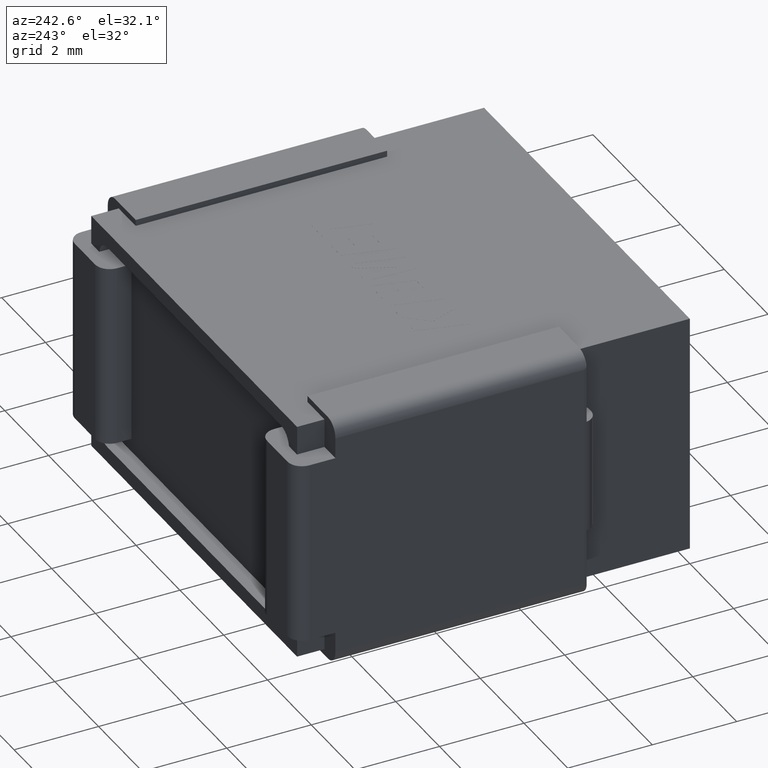
[diagram: clean part render]
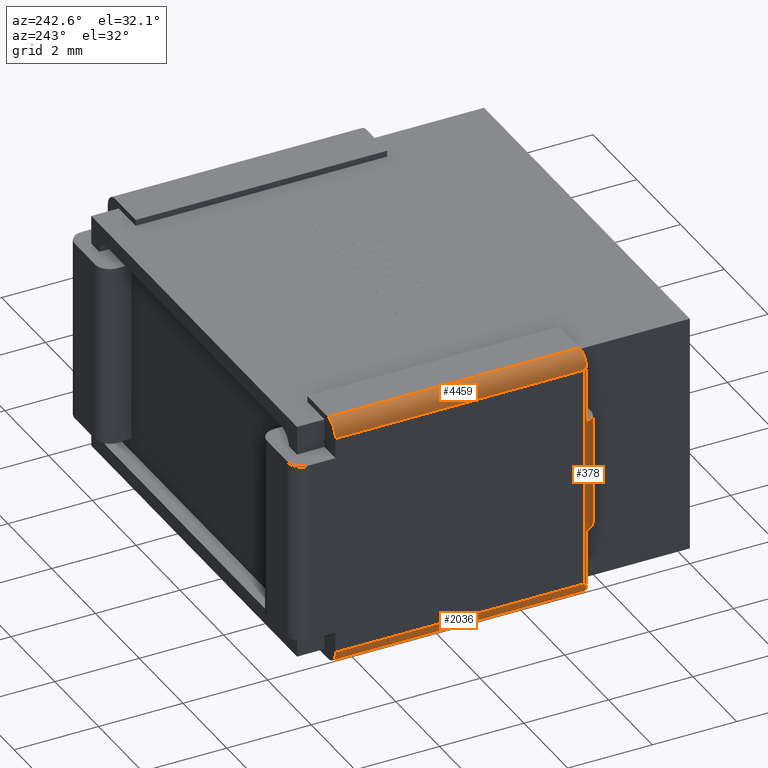
[diagram: same view with one multi-face feature highlighted, each face labeled with its STEP entity id]
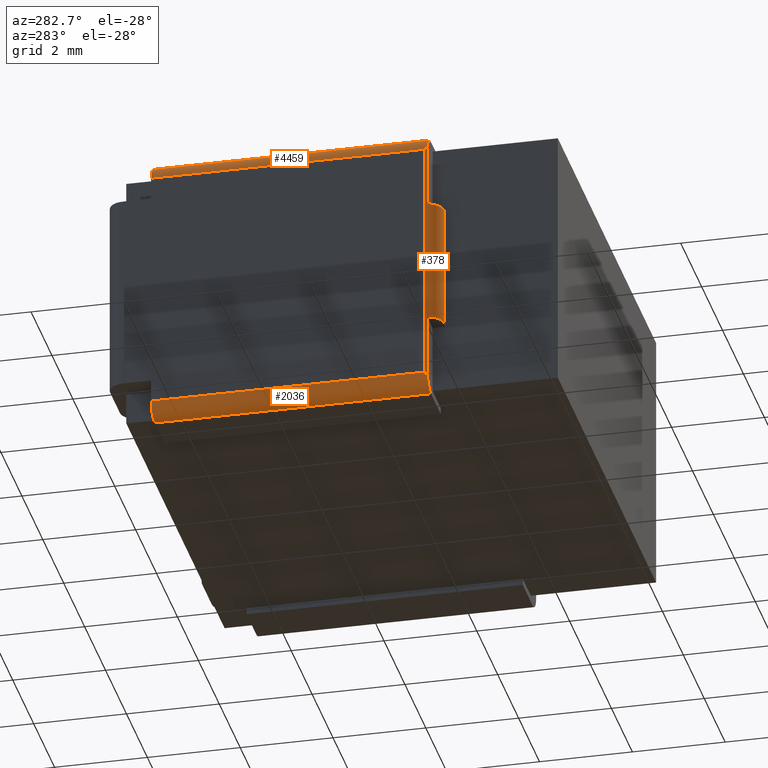
[diagram: same view with one multi-face feature highlighted, each face labeled with its STEP entity id]
A machine part, auxiliary view. The highlighted faces form ONE feature: a constant-radius fillet chain: 3 tangent blend faces with common blend radius 0.342 mm. The faces share edges in the B-rep.
A second angle (auxiliary view) of the same feature is appended — it is thin or edge-on in the first view.
Their STEP definitions:
[1] entity #4459 (Cylinder):
#267 = ORIENTED_EDGE ( 'NONE', *, *, #341, .T. ) ;
#315 = EDGE_CURVE ( 'NONE', #4312, #1218, #1763, .T. ) ;
#316 = CARTESIAN_POINT ( 'NONE',  ( -0.1580000000000053584, 8.650989808689429239, 0.1455629377962413262 ) ) ;
#339 =( BOUNDED_CURVE ( )  B_SPLINE_CURVE ( 3, ( #2807, #751, #2828, #1828 ),
 .UNSPECIFIED., .F., .T. ) 
 B_SPLINE_CURVE_WITH_KNOTS ( ( 4, 4 ),
 ( 4.712388980384690562, 4.897657562833844125 ),
 .UNSPECIFIED. ) 
 CURVE ( )  GEOMETRIC_REPRESENTATION_ITEM ( )  RATIONAL_B_SPLINE_CURVE ( ( 1.000000000000000000, 0.9971416742081725682, 0.9971416742081725682, 1.000000000000000000 ) ) 
 REPRESENTATION_ITEM ( '' )  );
#341 = EDGE_CURVE ( 'NONE', #1218, #3274, #339, .T. ) ;
#666 = LINE ( 'NONE', #316, #3176 ) ;
#751 = CARTESIAN_POINT ( 'NONE',  ( -0.5000000000000013323, 2.740838927622124999, -0.1752861811364548050 ) ) ;
#994 = FACE_OUTER_BOUND ( 'NONE', #1305, .T. ) ;
#1118 = CARTESIAN_POINT ( 'NONE',  ( -0.5000000000000056621, 8.650989808689429239, -0.1964370622037586167 ) ) ;
#1218 = VERTEX_POINT ( 'NONE', #1390 ) ;
#1265 = CARTESIAN_POINT ( 'NONE',  ( -0.1580000000000018889, 2.698989808689428838, -0.1964370622037586167 ) ) ;
#1305 = EDGE_LOOP ( 'NONE', ( #3384, #267, #2004, #4207, #3899 ) ) ;
#1311 = VECTOR ( 'NONE', #1389, 1000.000000000000000 ) ;
#1389 = DIRECTION ( 'NONE',  ( 6.938893903907228378E-16, -1.000000000000000000, 0.000000000000000000 ) ) ;
#1390 = CARTESIAN_POINT ( 'NONE',  ( -0.5000000000000015543, 2.761989808689428116, -0.1964370622037586167 ) ) ;
#1656 = DIRECTION ( 'NONE',  ( -6.938893903907228378E-16, 1.000000000000000000, -0.000000000000000000 ) ) ;
#1763 = LINE ( 'NONE', #1118, #1311 ) ;
#1783 = CIRCLE ( 'NONE', #4389, 0.3419999999999999152 ) ;
#1828 = CARTESIAN_POINT ( 'NONE',  ( -0.4941472891456972771, 2.698989808689428394, -0.1334370622037569232 ) ) ;
#1863 = DIRECTION ( 'NONE',  ( 6.938893903907228378E-16, -1.000000000000000000, 0.000000000000000000 ) ) ;
#2004 = ORIENTED_EDGE ( 'NONE', *, *, #4370, .T. ) ;
#2033 = DIRECTION ( 'NONE',  ( 0.000000000000000000, 0.000000000000000000, -1.000000000000000000 ) ) ;
#2107 = DIRECTION ( 'NONE',  ( 0.000000000000000000, 0.000000000000000000, -1.000000000000000000 ) ) ;
#2762 = CARTESIAN_POINT ( 'NONE',  ( -0.1580000000000053584, 8.650989808689429239, -0.1964370622037586167 ) ) ;
#2807 = CARTESIAN_POINT ( 'NONE',  ( -0.5000000000000015543, 2.761989808689428116, -0.1964370622037586167 ) ) ;
#2828 = CARTESIAN_POINT ( 'NONE',  ( -0.4980435040791475476, 2.719778730718132920, -0.1542259842324630315 ) ) ;
#3031 = AXIS2_PLACEMENT_3D ( 'NONE', #1265, #1656, #2033 ) ;
#3035 = AXIS2_PLACEMENT_3D ( 'NONE', #2762, #3487, #2107 ) ;
#3050 = VERTEX_POINT ( 'NONE', #3921 ) ;
#3176 = VECTOR ( 'NONE', #4235, 1000.000000000000000 ) ;
#3274 = VERTEX_POINT ( 'NONE', #4187 ) ;
#3275 = CARTESIAN_POINT ( 'NONE',  ( -0.5000000000000056621, 8.650989808689429239, -0.1964370622037586167 ) ) ;
#3315 = CARTESIAN_POINT ( 'NONE',  ( -0.1580000000000053584, 8.650989808689429239, -0.1964370622037586167 ) ) ;
#3384 = ORIENTED_EDGE ( 'NONE', *, *, #315, .T. ) ;
#3433 = EDGE_CURVE ( 'NONE', #3050, #3765, #666, .T. ) ;
#3483 = CIRCLE ( 'NONE', #3031, 0.3419999999999999152 ) ;
#3487 = DIRECTION ( 'NONE',  ( 6.938893903907228378E-16, -1.000000000000000000, 0.000000000000000000 ) ) ;
#3765 = VERTEX_POINT ( 'NONE', #3906 ) ;
#3874 = CYLINDRICAL_SURFACE ( 'NONE', #3035, 0.3419999999999999152 ) ;
#3899 = ORIENTED_EDGE ( 'NONE', *, *, #4515, .T. ) ;
#3906 = CARTESIAN_POINT ( 'NONE',  ( -0.1580000000000053584, 8.650989808689429239, 0.1455629377962413262 ) ) ;
#3921 = CARTESIAN_POINT ( 'NONE',  ( -0.1580000000000018889, 2.698989808689428838, 0.1455629377962413262 ) ) ;
#3957 = DIRECTION ( 'NONE',  ( 0.000000000000000000, 0.000000000000000000, -1.000000000000000000 ) ) ;
#4187 = CARTESIAN_POINT ( 'NONE',  ( -0.4941472891456972771, 2.698989808689428394, -0.1334370622037569232 ) ) ;
#4207 = ORIENTED_EDGE ( 'NONE', *, *, #3433, .T. ) ;
#4235 = DIRECTION ( 'NONE',  ( -6.938893903907228378E-16, 1.000000000000000000, -0.000000000000000000 ) ) ;
#4312 = VERTEX_POINT ( 'NONE', #3275 ) ;
#4370 = EDGE_CURVE ( 'NONE', #3274, #3050, #3483, .T. ) ;
#4389 = AXIS2_PLACEMENT_3D ( 'NONE', #3315, #1863, #3957 ) ;
#4459 = ADVANCED_FACE ( 'NONE', ( #994 ), #3874, .T. ) ;
#4515 = EDGE_CURVE ( 'NONE', #3765, #4312, #1783, .T. ) ;
[2] entity #378 (Cylinder):
#63 = CARTESIAN_POINT ( 'NONE',  ( -0.5000000000000015543, 2.761989808689428116, -1.504799999999999915 ) ) ;
#321 = VECTOR ( 'NONE', #4405, 1000.000000000000000 ) ;
#339 =( BOUNDED_CURVE ( )  B_SPLINE_CURVE ( 3, ( #2807, #751, #2828, #1828 ),
 .UNSPECIFIED., .F., .T. ) 
 B_SPLINE_CURVE_WITH_KNOTS ( ( 4, 4 ),
 ( 4.712388980384690562, 4.897657562833844125 ),
 .UNSPECIFIED. ) 
 CURVE ( )  GEOMETRIC_REPRESENTATION_ITEM ( )  RATIONAL_B_SPLINE_CURVE ( ( 1.000000000000000000, 0.9971416742081725682, 0.9971416742081725682, 1.000000000000000000 ) ) 
 REPRESENTATION_ITEM ( '' )  );
#341 = EDGE_CURVE ( 'NONE', #1218, #3274, #339, .T. ) ;
#342 = CARTESIAN_POINT ( 'NONE',  ( -0.5000000000000013323, 2.740838927622124999, -5.524713818863545178 ) ) ;
#352 = CARTESIAN_POINT ( 'NONE',  ( -0.4941472891456972771, 2.698989808689428394, -4.195199999999999818 ) ) ;
#378 = ADVANCED_FACE ( 'NONE', ( #3282 ), #3616, .T. ) ;
#400 = CARTESIAN_POINT ( 'NONE',  ( -0.1580000000000015559, 2.761989808689428560, -4.195199999999999818 ) ) ;
#452 = LINE ( 'NONE', #63, #321 ) ;
#471 = CIRCLE ( 'NONE', #3446, 0.3419999999999999707 ) ;
#503 = VERTEX_POINT ( 'NONE', #4448 ) ;
#684 = EDGE_CURVE ( 'NONE', #957, #1233, #1825, .T. ) ;
#713 = EDGE_CURVE ( 'NONE', #3274, #1167, #2304, .T. ) ;
#751 = CARTESIAN_POINT ( 'NONE',  ( -0.5000000000000013323, 2.740838927622124999, -0.1752861811364548050 ) ) ;
#812 =( BOUNDED_CURVE ( )  B_SPLINE_CURVE ( 3, ( #904, #4256, #342, #3461 ),
 .UNSPECIFIED., .F., .F. ) 
 B_SPLINE_CURVE_WITH_KNOTS ( ( 4, 4 ),
 ( 4.527120397935535223, 4.712388980384688786 ),
 .UNSPECIFIED. ) 
 CURVE ( )  GEOMETRIC_REPRESENTATION_ITEM ( )  RATIONAL_B_SPLINE_CURVE ( ( 1.000000000000000000, 0.9971416742081725682, 0.9971416742081725682, 1.000000000000000000 ) ) 
 REPRESENTATION_ITEM ( '' )  );
#821 = DIRECTION ( 'NONE',  ( 1.000000000000000000, 0.000000000000000000, 0.000000000000000000 ) ) ;
#834 = VERTEX_POINT ( 'NONE', #1754 ) ;
#904 = CARTESIAN_POINT ( 'NONE',  ( -0.4941472891456972771, 2.698989808689428394, -5.566562937796243560 ) ) ;
#925 = CARTESIAN_POINT ( 'NONE',  ( -0.1580000000000013061, 2.419989808689428923, -4.195199999999999818 ) ) ;
#951 = CIRCLE ( 'NONE', #2162, 0.3419999999999999707 ) ;
#957 = VERTEX_POINT ( 'NONE', #352 ) ;
#1004 = ORIENTED_EDGE ( 'NONE', *, *, #713, .F. ) ;
#1065 = ORIENTED_EDGE ( 'NONE', *, *, #2234, .F. ) ;
#1104 = ORIENTED_EDGE ( 'NONE', *, *, #3773, .F. ) ;
#1125 = ORIENTED_EDGE ( 'NONE', *, *, #684, .F. ) ;
#1133 = EDGE_CURVE ( 'NONE', #2992, #503, #2056, .T. ) ;
#1167 = VERTEX_POINT ( 'NONE', #2104 ) ;
#1176 = CARTESIAN_POINT ( 'NONE',  ( -0.4941472891456972771, 2.698989808689428394, -0.1334370622037569232 ) ) ;
#1218 = VERTEX_POINT ( 'NONE', #1390 ) ;
#1233 = VERTEX_POINT ( 'NONE', #2808 ) ;
#1390 = CARTESIAN_POINT ( 'NONE',  ( -0.5000000000000015543, 2.761989808689428116, -0.1964370622037586167 ) ) ;
#1410 = DIRECTION ( 'NONE',  ( -1.000000000000000000, 0.000000000000000000, 0.000000000000000000 ) ) ;
#1422 = ORIENTED_EDGE ( 'NONE', *, *, #3269, .F. ) ;
#1482 = EDGE_CURVE ( 'NONE', #503, #957, #471, .T. ) ;
#1502 = CARTESIAN_POINT ( 'NONE',  ( -0.1580000000000015559, 2.761989808689428560, -1.504799999999999915 ) ) ;
#1754 = CARTESIAN_POINT ( 'NONE',  ( -0.5000000000000015543, 2.761989808689428116, -5.503562937796242061 ) ) ;
#1760 = DIRECTION ( 'NONE',  ( -0.000000000000000000, 0.000000000000000000, 1.000000000000000000 ) ) ;
#1825 = LINE ( 'NONE', #2231, #3082 ) ;
#1828 = CARTESIAN_POINT ( 'NONE',  ( -0.4941472891456972771, 2.698989808689428394, -0.1334370622037569232 ) ) ;
#1898 = ORIENTED_EDGE ( 'NONE', *, *, #1133, .F. ) ;
#2056 = LINE ( 'NONE', #925, #2914 ) ;
#2104 = CARTESIAN_POINT ( 'NONE',  ( -0.4941472891456972771, 2.698989808689428394, -1.504799999999999915 ) ) ;
#2162 = AXIS2_PLACEMENT_3D ( 'NONE', #3862, #1760, #1410 ) ;
#2171 = DIRECTION ( 'NONE',  ( -0.000000000000000000, -0.000000000000000000, -1.000000000000000000 ) ) ;
#2182 = ORIENTED_EDGE ( 'NONE', *, *, #341, .F. ) ;
#2231 = CARTESIAN_POINT ( 'NONE',  ( -0.4941472891456977212, 2.698989808689428394, -4.195199999999999818 ) ) ;
#2234 = EDGE_CURVE ( 'NONE', #834, #1218, #452, .T. ) ;
#2304 = LINE ( 'NONE', #1176, #3221 ) ;
#2743 = EDGE_LOOP ( 'NONE', ( #2182, #1065, #1422, #1125, #4157, #1898, #1104, #1004 ) ) ;
#2807 = CARTESIAN_POINT ( 'NONE',  ( -0.5000000000000015543, 2.761989808689428116, -0.1964370622037586167 ) ) ;
#2808 = CARTESIAN_POINT ( 'NONE',  ( -0.4941472891456972771, 2.698989808689428394, -5.566562937796243560 ) ) ;
#2828 = CARTESIAN_POINT ( 'NONE',  ( -0.4980435040791475476, 2.719778730718132920, -0.1542259842324630315 ) ) ;
#2914 = VECTOR ( 'NONE', #4211, 1000.000000000000000 ) ;
#2976 = DIRECTION ( 'NONE',  ( -0.000000000000000000, -0.000000000000000000, -1.000000000000000000 ) ) ;
#2992 = VERTEX_POINT ( 'NONE', #3091 ) ;
#3082 = VECTOR ( 'NONE', #4018, 1000.000000000000000 ) ;
#3091 = CARTESIAN_POINT ( 'NONE',  ( -0.1580000000000013338, 2.419989808689428923, -1.504799999999999915 ) ) ;
#3221 = VECTOR ( 'NONE', #2976, 1000.000000000000000 ) ;
#3264 = DIRECTION ( 'NONE',  ( 0.000000000000000000, 0.000000000000000000, 1.000000000000000000 ) ) ;
#3269 = EDGE_CURVE ( 'NONE', #1233, #834, #812, .T. ) ;
#3274 = VERTEX_POINT ( 'NONE', #4187 ) ;
#3282 = FACE_OUTER_BOUND ( 'NONE', #2743, .T. ) ;
#3446 = AXIS2_PLACEMENT_3D ( 'NONE', #400, #2171, #3520 ) ;
#3459 = AXIS2_PLACEMENT_3D ( 'NONE', #1502, #3264, #821 ) ;
#3461 = CARTESIAN_POINT ( 'NONE',  ( -0.5000000000000015543, 2.761989808689428116, -5.503562937796242061 ) ) ;
#3520 = DIRECTION ( 'NONE',  ( 1.000000000000000000, 0.000000000000000000, 0.000000000000000000 ) ) ;
#3616 = CYLINDRICAL_SURFACE ( 'NONE', #3459, 0.3419999999999999707 ) ;
#3773 = EDGE_CURVE ( 'NONE', #1167, #2992, #951, .T. ) ;
#3862 = CARTESIAN_POINT ( 'NONE',  ( -0.1580000000000015559, 2.761989808689428560, -1.504799999999999915 ) ) ;
#4018 = DIRECTION ( 'NONE',  ( -0.000000000000000000, -0.000000000000000000, -1.000000000000000000 ) ) ;
#4157 = ORIENTED_EDGE ( 'NONE', *, *, #1482, .F. ) ;
#4187 = CARTESIAN_POINT ( 'NONE',  ( -0.4941472891456972771, 2.698989808689428394, -0.1334370622037569232 ) ) ;
#4211 = DIRECTION ( 'NONE',  ( 0.000000000000000000, 0.000000000000000000, -1.000000000000000000 ) ) ;
#4256 = CARTESIAN_POINT ( 'NONE',  ( -0.4980435040791475476, 2.719778730718132920, -5.545774015767537257 ) ) ;
#4405 = DIRECTION ( 'NONE',  ( -0.000000000000000000, -0.000000000000000000, 1.000000000000000000 ) ) ;
#4448 = CARTESIAN_POINT ( 'NONE',  ( -0.1580000000000013338, 2.419989808689428923, -4.195199999999999818 ) ) ;
[3] entity #2036 (Cylinder):
#88 = EDGE_CURVE ( 'NONE', #2782, #839, #4004, .T. ) ;
#102 = CARTESIAN_POINT ( 'NONE',  ( -0.1580000000000053584, 8.650989808689429239, -5.503562937796242061 ) ) ;
#114 = VERTEX_POINT ( 'NONE', #3728 ) ;
#146 = EDGE_CURVE ( 'NONE', #114, #2782, #2643, .T. ) ;
#342 = CARTESIAN_POINT ( 'NONE',  ( -0.5000000000000013323, 2.740838927622124999, -5.524713818863545178 ) ) ;
#622 = CARTESIAN_POINT ( 'NONE',  ( -0.1580000000000053584, 8.650989808689429239, -5.503562937796242061 ) ) ;
#672 = CARTESIAN_POINT ( 'NONE',  ( -0.1580000000000018889, 2.698989808689428838, -5.845562937796241698 ) ) ;
#810 = DIRECTION ( 'NONE',  ( -6.938893903907228378E-16, 1.000000000000000000, -0.000000000000000000 ) ) ;
#812 =( BOUNDED_CURVE ( )  B_SPLINE_CURVE ( 3, ( #904, #4256, #342, #3461 ),
 .UNSPECIFIED., .F., .F. ) 
 B_SPLINE_CURVE_WITH_KNOTS ( ( 4, 4 ),
 ( 4.527120397935535223, 4.712388980384688786 ),
 .UNSPECIFIED. ) 
 CURVE ( )  GEOMETRIC_REPRESENTATION_ITEM ( )  RATIONAL_B_SPLINE_CURVE ( ( 1.000000000000000000, 0.9971416742081725682, 0.9971416742081725682, 1.000000000000000000 ) ) 
 REPRESENTATION_ITEM ( '' )  );
#834 = VERTEX_POINT ( 'NONE', #1754 ) ;
#839 = VERTEX_POINT ( 'NONE', #672 ) ;
#877 = ORIENTED_EDGE ( 'NONE', *, *, #4284, .T. ) ;
#886 = ORIENTED_EDGE ( 'NONE', *, *, #146, .T. ) ;
#904 = CARTESIAN_POINT ( 'NONE',  ( -0.4941472891456972771, 2.698989808689428394, -5.566562937796243560 ) ) ;
#918 = AXIS2_PLACEMENT_3D ( 'NONE', #1490, #2263, #3270 ) ;
#1146 = LINE ( 'NONE', #3581, #4162 ) ;
#1233 = VERTEX_POINT ( 'NONE', #2808 ) ;
#1454 = AXIS2_PLACEMENT_3D ( 'NONE', #622, #3113, #1769 ) ;
#1490 = CARTESIAN_POINT ( 'NONE',  ( -0.1580000000000018889, 2.698989808689428838, -5.503562937796242061 ) ) ;
#1650 = ORIENTED_EDGE ( 'NONE', *, *, #88, .T. ) ;
#1689 = ORIENTED_EDGE ( 'NONE', *, *, #3269, .T. ) ;
#1754 = CARTESIAN_POINT ( 'NONE',  ( -0.5000000000000015543, 2.761989808689428116, -5.503562937796242061 ) ) ;
#1769 = DIRECTION ( 'NONE',  ( 0.000000000000000000, 0.000000000000000000, 1.000000000000000000 ) ) ;
#1793 = ORIENTED_EDGE ( 'NONE', *, *, #2237, .T. ) ;
#1800 = CARTESIAN_POINT ( 'NONE',  ( -0.1580000000000053584, 8.650989808689429239, -5.845562937796241698 ) ) ;
#1823 = AXIS2_PLACEMENT_3D ( 'NONE', #102, #3012, #1958 ) ;
#1884 = EDGE_LOOP ( 'NONE', ( #1793, #1689, #877, #886, #1650 ) ) ;
#1907 = DIRECTION ( 'NONE',  ( 6.938893903907228378E-16, -1.000000000000000000, 0.000000000000000000 ) ) ;
#1958 = DIRECTION ( 'NONE',  ( 0.000000000000000000, 0.000000000000000000, -1.000000000000000000 ) ) ;
#2034 = FACE_OUTER_BOUND ( 'NONE', #1884, .T. ) ;
#2036 = ADVANCED_FACE ( 'NONE', ( #2034 ), #3823, .T. ) ;
#2237 = EDGE_CURVE ( 'NONE', #839, #1233, #2912, .T. ) ;
#2263 = DIRECTION ( 'NONE',  ( -6.938893903907228378E-16, 1.000000000000000000, -0.000000000000000000 ) ) ;
#2314 = CARTESIAN_POINT ( 'NONE',  ( -0.1580000000000018889, 2.698989808689428838, -5.845562937796241698 ) ) ;
#2643 = CIRCLE ( 'NONE', #1823, 0.3420000000000003038 ) ;
#2782 = VERTEX_POINT ( 'NONE', #1800 ) ;
#2808 = CARTESIAN_POINT ( 'NONE',  ( -0.4941472891456972771, 2.698989808689428394, -5.566562937796243560 ) ) ;
#2912 = CIRCLE ( 'NONE', #918, 0.3420000000000003038 ) ;
#3012 = DIRECTION ( 'NONE',  ( 6.938893903907228378E-16, -1.000000000000000000, 0.000000000000000000 ) ) ;
#3113 = DIRECTION ( 'NONE',  ( -6.938893903907228378E-16, 1.000000000000000000, 0.000000000000000000 ) ) ;
#3269 = EDGE_CURVE ( 'NONE', #1233, #834, #812, .T. ) ;
#3270 = DIRECTION ( 'NONE',  ( 0.000000000000000000, 0.000000000000000000, -1.000000000000000000 ) ) ;
#3461 = CARTESIAN_POINT ( 'NONE',  ( -0.5000000000000015543, 2.761989808689428116, -5.503562937796242061 ) ) ;
#3528 = VECTOR ( 'NONE', #1907, 1000.000000000000000 ) ;
#3581 = CARTESIAN_POINT ( 'NONE',  ( -0.5000000000000056621, 8.650989808689429239, -5.503562937796242061 ) ) ;
#3728 = CARTESIAN_POINT ( 'NONE',  ( -0.5000000000000056621, 8.650989808689429239, -5.503562937796242061 ) ) ;
#3823 = CYLINDRICAL_SURFACE ( 'NONE', #1454, 0.3420000000000003038 ) ;
#4004 = LINE ( 'NONE', #2314, #3528 ) ;
#4162 = VECTOR ( 'NONE', #810, 1000.000000000000000 ) ;
#4256 = CARTESIAN_POINT ( 'NONE',  ( -0.4980435040791475476, 2.719778730718132920, -5.545774015767537257 ) ) ;
#4284 = EDGE_CURVE ( 'NONE', #834, #114, #1146, .T. ) ;